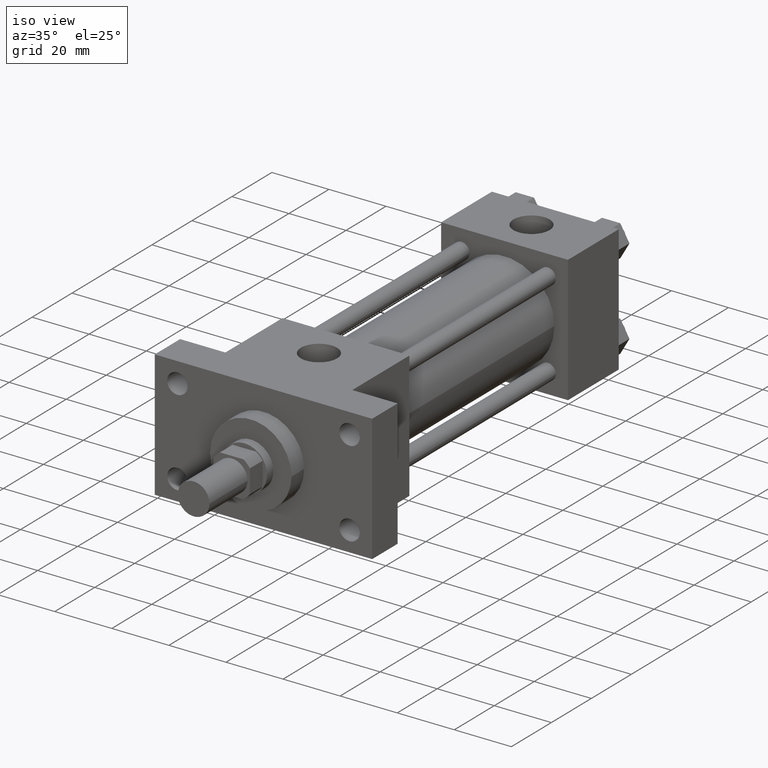
[diagram: clean part render]
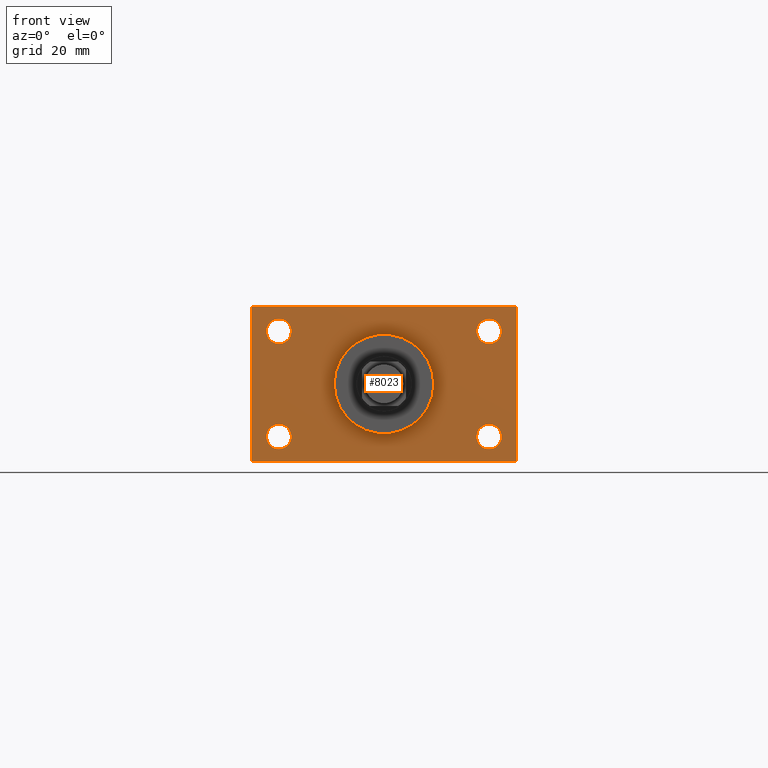
[diagram: tour spotlight — one face highlighted and labeled with its STEP entity id]
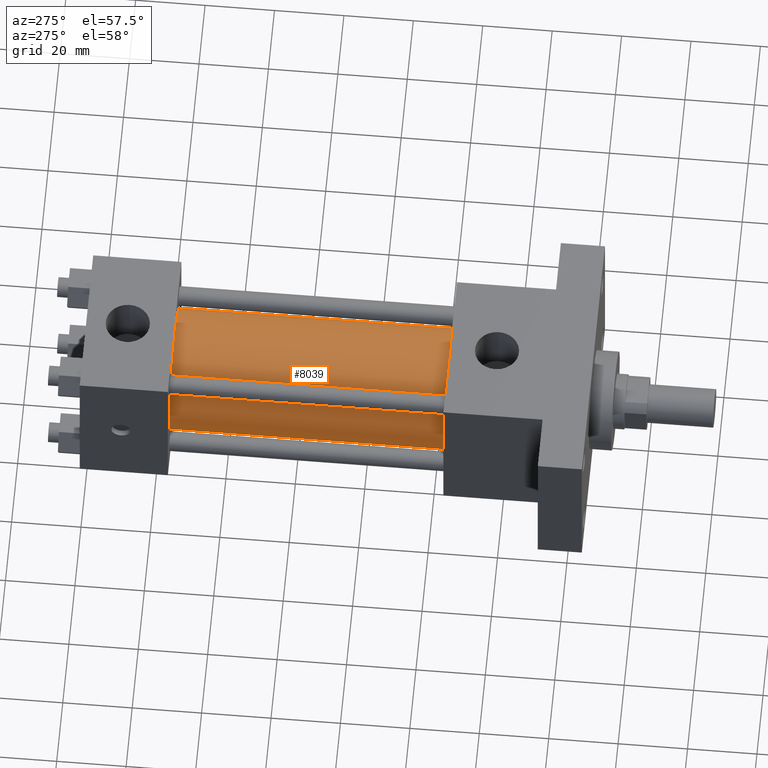
[diagram: tour spotlight — one face highlighted and labeled with its STEP entity id]
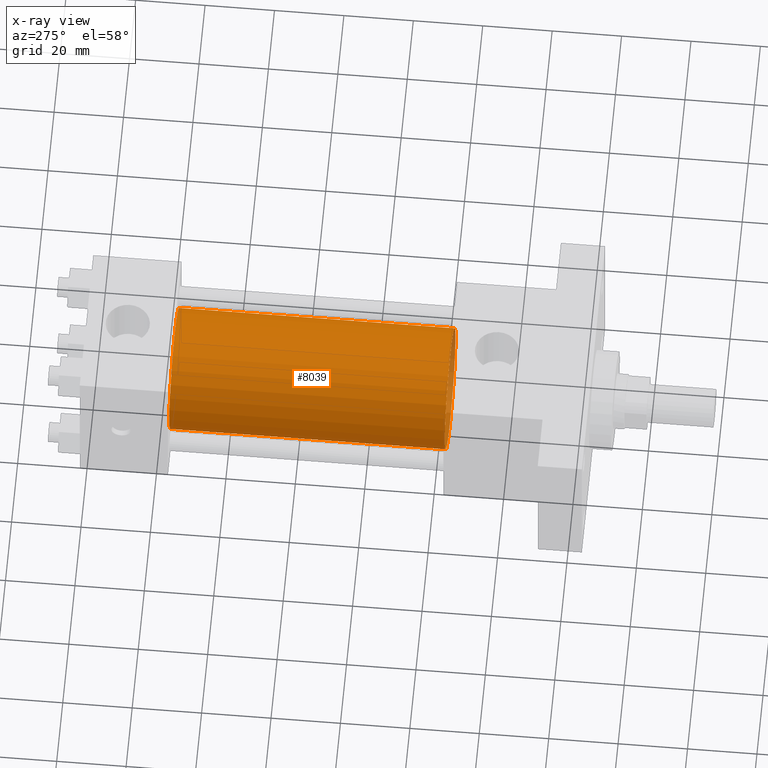
[diagram: x-ray of the same camera — body ghosted, this tour face saturated]
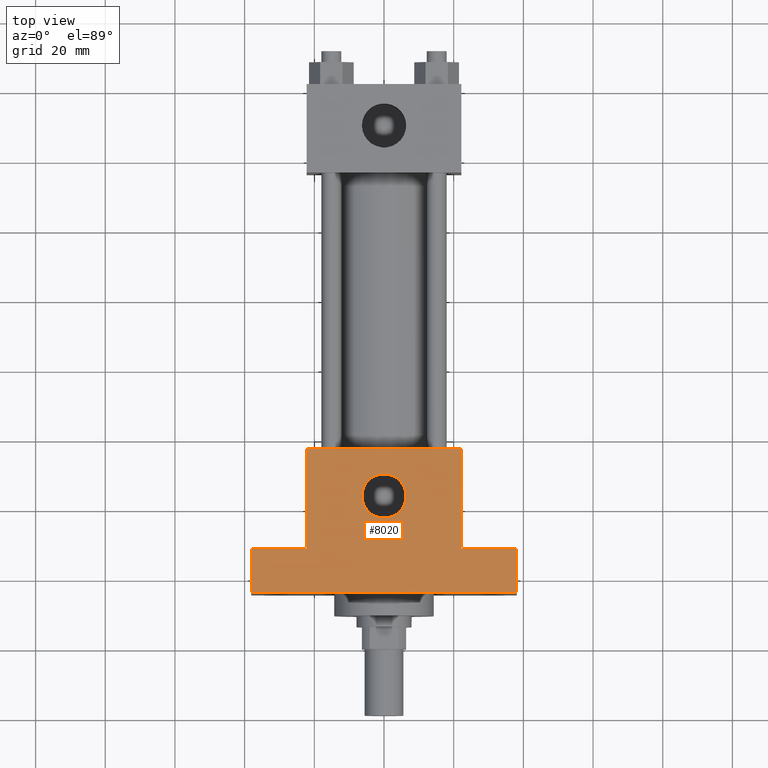
[diagram: tour spotlight — one face highlighted and labeled with its STEP entity id]
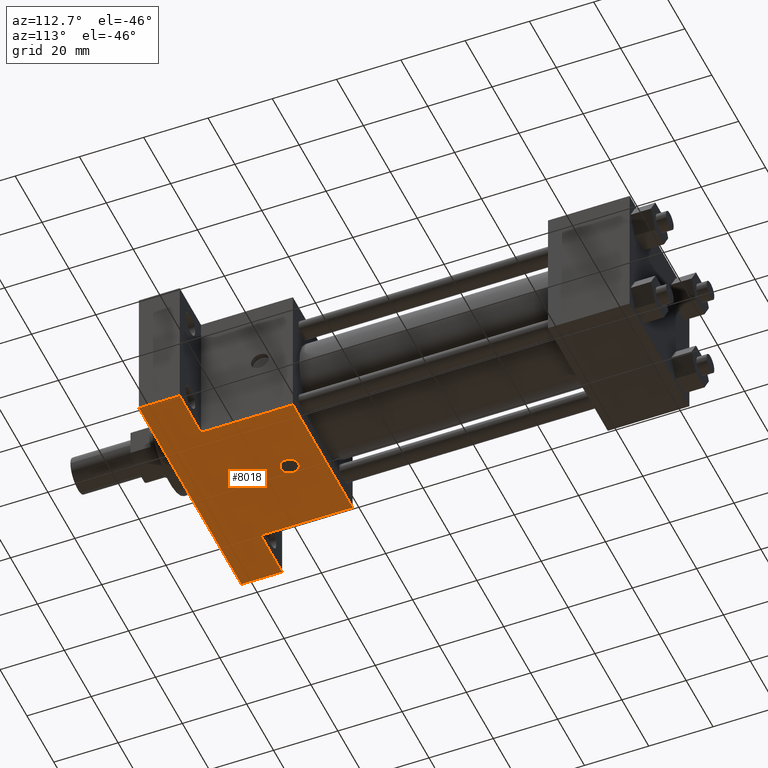
[diagram: tour spotlight — one face highlighted and labeled with its STEP entity id]
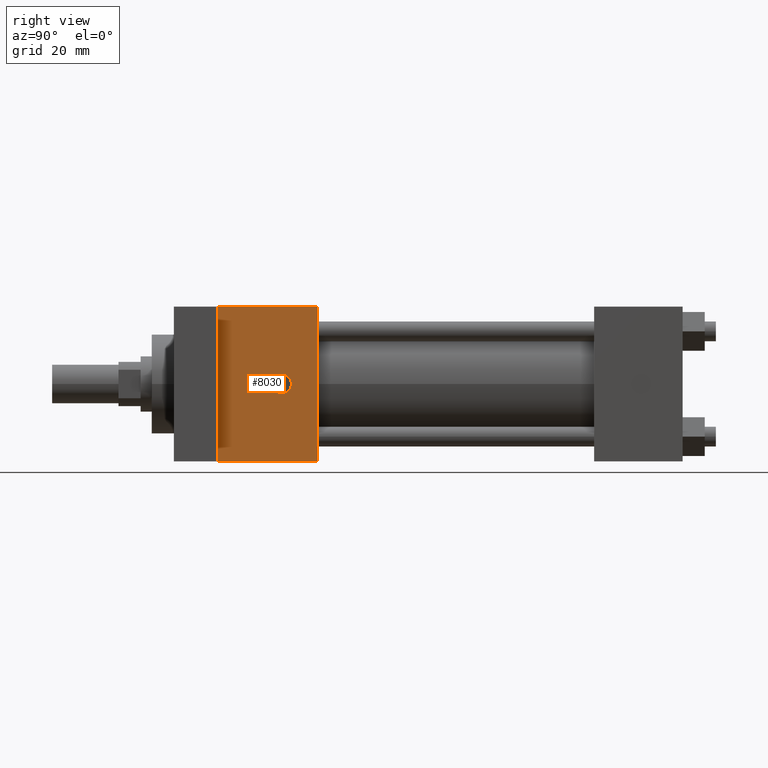
[diagram: tour spotlight — one face highlighted and labeled with its STEP entity id]
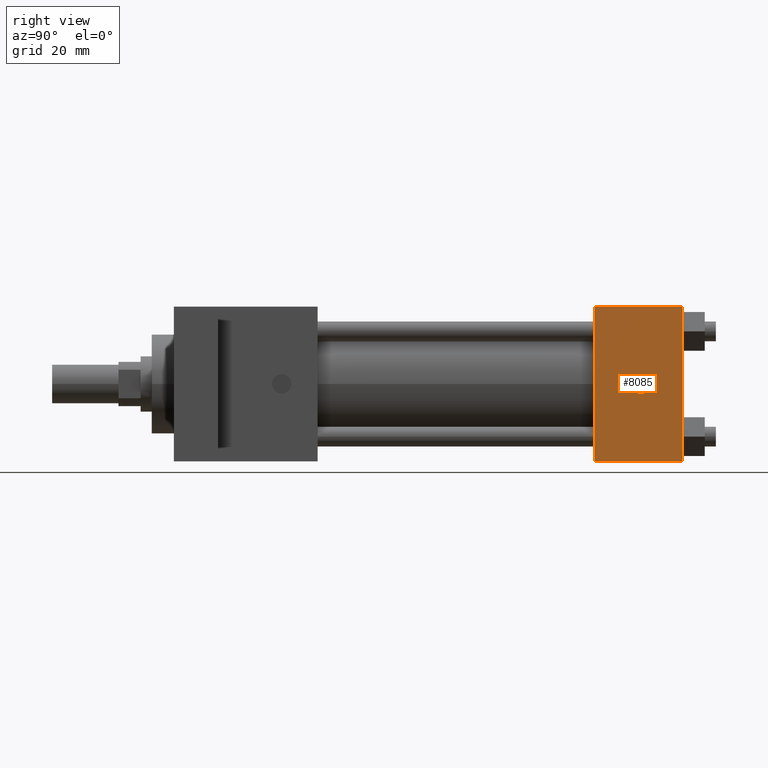
[diagram: tour spotlight — one face highlighted and labeled with its STEP entity id]
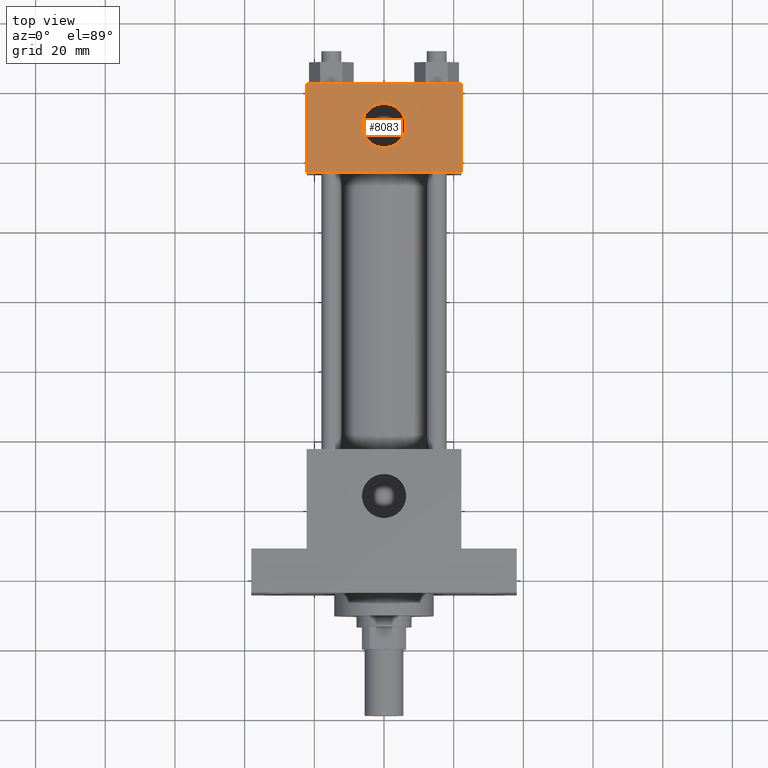
[diagram: tour spotlight — one face highlighted and labeled with its STEP entity id]
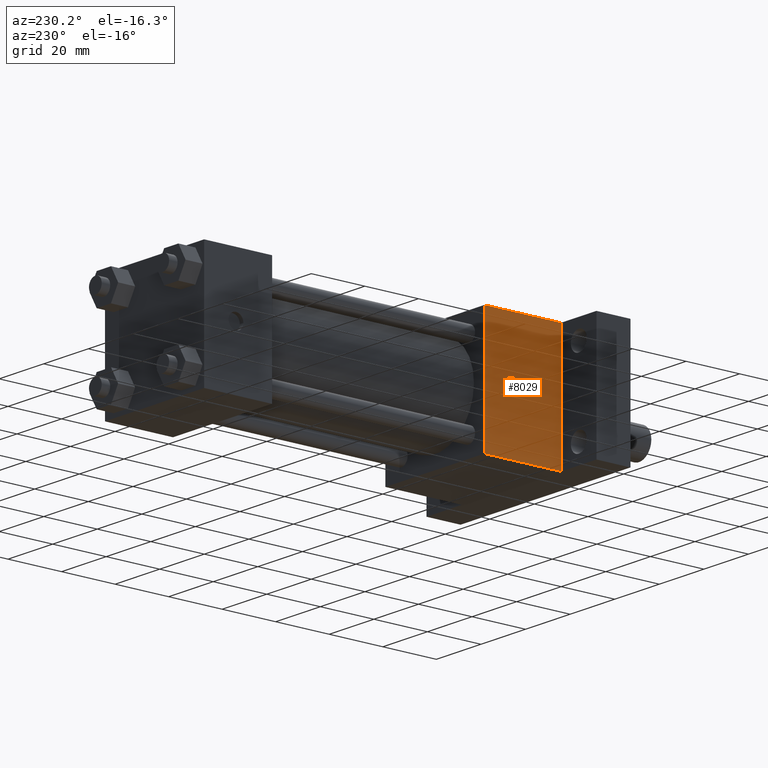
[diagram: tour spotlight — one face highlighted and labeled with its STEP entity id]
A machine part: a face-by-face anatomy tour. The part has 92 B-rep faces; the first image is the clean iso view, then the 8 largest visible faces are spotlighted one at a time (largest first), each with its STEP entity span.

Face 1 — front view, entity #8023. In plain terms, the highlighted planar face has unit normal (0, -1, 0).
Definition (entity closure, byte-faithful):
#424=EDGE_CURVE('',#430,#430,#425,.T.);
#425=CIRCLE('',#426,1.428750000E+001);
#426=AXIS2_PLACEMENT_3D('',#427,#428,#429);
#427=CARTESIAN_POINT('',(0.000000000E+000,1.587500000E+001,0.000000000E+000));
#428=DIRECTION('',(0.0E+000,1.0E+000,0.0E+000));
#429=DIRECTION('',(1.0E+000,0.0E+000,0.0E+000));
#430=VERTEX_POINT('',#431);
#431=CARTESIAN_POINT('',(1.428750000E+001,1.587500000E+001,0.000000000E+000));
#533=VERTEX_POINT('',#534);
#534=CARTESIAN_POINT('',(3.810000000E+001,1.587500000E+001,-2.222500000E+001));
#535=EDGE_CURVE('',#540,#533,#536,.T.);
#536=LINE('',#537,#538);
#537=CARTESIAN_POINT('',(-3.810000000E+001,1.587500000E+001,-2.222500000E+001));
#538=VECTOR('',#539,1.0E+000);
#539=DIRECTION('',(1.0E+000,0.0E+000,0.0E+000));
#540=VERTEX_POINT('',#541);
#541=CARTESIAN_POINT('',(-3.810000000E+001,1.587500000E+001,-2.222500000E+001));
#596=VERTEX_POINT('',#597);
#597=CARTESIAN_POINT('',(3.810000000E+001,1.587500000E+001,2.222500000E+001));
#598=EDGE_CURVE('',#533,#596,#599,.T.);
#599=LINE('',#600,#601);
#600=CARTESIAN_POINT('',(3.810000000E+001,1.587500000E+001,-2.222500000E+001));
#601=VECTOR('',#602,1.0E+000);
#602=DIRECTION('',(0.0E+000,0.0E+000,1.0E+000));
#626=VERTEX_POINT('',#628);
#628=CARTESIAN_POINT('',(-3.810000000E+001,1.587500000E+001,2.222500000E+001));
#629=EDGE_CURVE('',#596,#626,#630,.T.);
#630=LINE('',#631,#632);
#631=CARTESIAN_POINT('',(3.810000000E+001,1.587500000E+001,2.222500000E+001));
#632=VECTOR('',#633,1.0E+000);
#633=DIRECTION('',(-1.0E+000,0.0E+000,0.0E+000));
#681=EDGE_CURVE('',#626,#540,#682,.T.);
#682=LINE('',#683,#684);
#683=CARTESIAN_POINT('',(-3.810000000E+001,1.587500000E+001,2.222500000E+001));
#684=VECTOR('',#685,1.0E+000);
#685=DIRECTION('',(0.0E+000,0.0E+000,-1.0E+000));
#724=FACE_OUTER_BOUND('',#730,.T.);
#725=FACE_BOUND('',#731,.T.);
#726=FACE_BOUND('',#732,.T.);
#727=FACE_BOUND('',#733,.T.);
#728=FACE_BOUND('',#734,.T.);
#729=FACE_BOUND('',#735,.T.);
#730=EDGE_LOOP('',(#736));
#731=EDGE_LOOP('',(#737));
#732=EDGE_LOOP('',(#746));
#733=EDGE_LOOP('',(#755));
#734=EDGE_LOOP('',(#764));
#735=EDGE_LOOP('',(#773,#774,#775,#776));
#736=ORIENTED_EDGE('',*,*,#424,.T.);
#737=ORIENTED_EDGE('',*,*,#738,.T.);
#738=EDGE_CURVE('',#744,#744,#739,.T.);
#739=CIRCLE('',#740,3.568700000E+000);
#740=AXIS2_PLACEMENT_3D('',#741,#742,#743);
#741=CARTESIAN_POINT('',(-3.016250000E+001,1.587500000E+001,1.511300000E+001));
#742=DIRECTION('',(0.0E+000,1.0E+000,0.0E+000));
#743=DIRECTION('',(0.0E+000,0.0E+000,1.0E+000));
#744=VERTEX_POINT('',#745);
#745=CARTESIAN_POINT('',(-3.016250000E+001,1.587500000E+001,1.868170000E+001));
#746=ORIENTED_EDGE('',*,*,#747,.T.);
#747=EDGE_CURVE('',#753,#753,#748,.T.);
#748=CIRCLE('',#749,3.568700000E+000);
#749=AXIS2_PLACEMENT_3D('',#750,#751,#752);
#750=CARTESIAN_POINT('',(3.016250000E+001,1.587500000E+001,1.511300000E+001));
#751=DIRECTION('',(0.0E+000,1.0E+000,0.0E+000));
#752=DIRECTION('',(0.0E+000,0.0E+000,1.0E+000));
#753=VERTEX_POINT('',#754);
#754=CARTESIAN_POINT('',(3.016250000E+001,1.587500000E+001,1.868170000E+001));
#755=ORIENTED_EDGE('',*,*,#756,.T.);
#756=EDGE_CURVE('',#762,#762,#757,.T.);
#757=CIRCLE('',#758,3.568700000E+000);
#758=AXIS2_PLACEMENT_3D('',#759,#760,#761);
#759=CARTESIAN_POINT('',(3.016250000E+001,1.587500000E+001,-1.511300000E+001));
#760=DIRECTION('',(0.0E+000,1.0E+000,0.0E+000));
#761=DIRECTION('',(0.0E+000,0.0E+000,1.0E+000));
#762=VERTEX_POINT('',#763);
#763=CARTESIAN_POINT('',(3.016250000E+001,1.587500000E+001,-1.154430000E+001));
#764=ORIENTED_EDGE('',*,*,#765,.T.);
#765=EDGE_CURVE('',#771,#771,#766,.T.);
#766=CIRCLE('',#767,3.568700000E+000);
#767=AXIS2_PLACEMENT_3D('',#768,#769,#770);
#768=CARTESIAN_POINT('',(-3.016250000E+001,1.587500000E+001,-1.511300000E+001));
#769=DIRECTION('',(0.0E+000,1.0E+000,0.0E+000));
#770=DIRECTION('',(0.0E+000,0.0E+000,1.0E+000));
#771=VERTEX_POINT('',#772);
#772=CARTESIAN_POINT('',(-3.016250000E+001,1.587500000E+001,-1.154430000E+001));
#773=ORIENTED_EDGE('',*,*,#535,.T.);
#774=ORIENTED_EDGE('',*,*,#598,.T.);
#775=ORIENTED_EDGE('',*,*,#629,.T.);
#776=ORIENTED_EDGE('',*,*,#681,.T.);
#777=PLANE('',#778);
#778=AXIS2_PLACEMENT_3D('',#779,#780,#781);
#779=CARTESIAN_POINT('',(3.810000000E+001,1.587500000E+001,-2.222500000E+001));
#780=DIRECTION('',(0.0E+000,-1.0E+000,0.0E+000));
#781=DIRECTION('',(0.0E+000,0.0E+000,-1.0E+000));
#8023=ADVANCED_FACE('',(#724,#725,#726,#727,#728,#729),#777,.T.);

Face 2 — auxiliary view, entity #8039. An x-ray twin of the same camera follows (body ghosted, this face saturated) — the face is partly hidden behind the body. In plain terms, the highlighted cylindrical surface (bore or boss wall) has radius 17.4625 mm, axis along (0, -1, 0).
Definition (entity closure, byte-faithful):
#839=EDGE_CURVE('',#845,#845,#840,.T.);
#840=CIRCLE('',#841,1.746250000E+001);
#841=AXIS2_PLACEMENT_3D('',#842,#843,#844);
#842=CARTESIAN_POINT('',(0.000000000E+000,5.715000000E+001,0.000000000E+000));
#843=DIRECTION('',(0.0E+000,1.0E+000,0.0E+000));
#844=DIRECTION('',(1.0E+000,0.0E+000,0.0E+000));
#845=VERTEX_POINT('',#846);
#846=CARTESIAN_POINT('',(1.746250000E+001,5.715000000E+001,0.000000000E+000));
#1062=FACE_OUTER_BOUND('',#1064,.T.);
#1063=FACE_BOUND('',#1065,.T.);
#1064=EDGE_LOOP('',(#1066));
#1065=EDGE_LOOP('',(#1075));
#1066=ORIENTED_EDGE('',*,*,#1067,.F.);
#1067=EDGE_CURVE('',#1073,#1073,#1068,.T.);
#1068=CIRCLE('',#1069,1.746250000E+001);
#1069=AXIS2_PLACEMENT_3D('',#1070,#1071,#1072);
#1070=CARTESIAN_POINT('',(0.000000000E+000,1.365250000E+002,0.000000000E+000));
#1071=DIRECTION('',(0.0E+000,1.0E+000,0.0E+000));
#1072=DIRECTION('',(1.0E+000,0.0E+000,0.0E+000));
#1073=VERTEX_POINT('',#1074);
#1074=CARTESIAN_POINT('',(1.746250000E+001,1.365250000E+002,0.000000000E+000));
#1075=ORIENTED_EDGE('',*,*,#839,.T.);
#1076=CYLINDRICAL_SURFACE('',#1077,1.746250000E+001);
#1077=AXIS2_PLACEMENT_3D('',#1078,#1079,#1080);
#1078=CARTESIAN_POINT('',(0.000000000E+000,1.365250000E+002,0.000000000E+000));
#1079=DIRECTION('',(0.0E+000,-1.0E+000,0.0E+000));
#1080=DIRECTION('',(0.0E+000,0.0E+000,-1.0E+000));
#8039=ADVANCED_FACE('',(#1062,#1063),#1076,.T.);

Face 3 — top view, entity #8020. In plain terms, the highlighted planar face has unit normal (0, 0, 1).
Definition (entity closure, byte-faithful):
#497=VERTEX_POINT('',#498);
#498=CARTESIAN_POINT('',(2.222500000E+001,2.857500000E+001,2.222500000E+001));
#499=EDGE_CURVE('',#504,#497,#500,.T.);
#500=LINE('',#501,#502);
#501=CARTESIAN_POINT('',(3.810000000E+001,2.857500000E+001,2.222500000E+001));
#502=VECTOR('',#503,1.0E+000);
#503=DIRECTION('',(-1.0E+000,0.0E+000,0.0E+000));
#504=VERTEX_POINT('',#505);
#505=CARTESIAN_POINT('',(3.810000000E+001,2.857500000E+001,2.222500000E+001));
#591=EDGE_CURVE('',#504,#596,#592,.T.);
#592=LINE('',#593,#594);
#593=CARTESIAN_POINT('',(3.810000000E+001,2.857500000E+001,2.222500000E+001));
#594=VECTOR('',#595,1.0E+000);
#595=DIRECTION('',(0.0E+000,-1.0E+000,0.0E+000));
#596=VERTEX_POINT('',#597);
#597=CARTESIAN_POINT('',(3.810000000E+001,1.587500000E+001,2.222500000E+001));
#608=FACE_OUTER_BOUND('',#610,.T.);
#609=FACE_BOUND('',#611,.T.);
#610=EDGE_LOOP('',(#612,#613,#614,#615,#616,#617,#618,#619));
#611=EDGE_LOOP('',(#656));
#612=ORIENTED_EDGE('',*,*,#620,.T.);
#613=ORIENTED_EDGE('',*,*,#629,.F.);
#614=ORIENTED_EDGE('',*,*,#591,.F.);
#615=ORIENTED_EDGE('',*,*,#499,.T.);
#616=ORIENTED_EDGE('',*,*,#634,.F.);
#617=ORIENTED_EDGE('',*,*,#641,.T.);
#618=ORIENTED_EDGE('',*,*,#648,.T.);
#619=ORIENTED_EDGE('',*,*,#655,.T.);
#620=EDGE_CURVE('',#625,#626,#621,.T.);
#621=LINE('',#622,#623);
#622=CARTESIAN_POINT('',(-3.810000000E+001,2.857500000E+001,2.222500000E+001));
#623=VECTOR('',#624,1.0E+000);
#624=DIRECTION('',(0.0E+000,-1.0E+000,0.0E+000));
#625=VERTEX_POINT('',#627);
#626=VERTEX_POINT('',#628);
#627=CARTESIAN_POINT('',(-3.810000000E+001,2.857500000E+001,2.222500000E+001));
#628=CARTESIAN_POINT('',(-3.810000000E+001,1.587500000E+001,2.222500000E+001));
#629=EDGE_CURVE('',#596,#626,#630,.T.);
#630=LINE('',#631,#632);
#631=CARTESIAN_POINT('',(3.810000000E+001,1.587500000E+001,2.222500000E+001));
#632=VECTOR('',#633,1.0E+000);
#633=DIRECTION('',(-1.0E+000,0.0E+000,0.0E+000));
#634=EDGE_CURVE('',#639,#497,#635,.T.);
#635=LINE('',#636,#637);
#636=CARTESIAN_POINT('',(2.222500000E+001,5.715000000E+001,2.222500000E+001));
#637=VECTOR('',#638,1.0E+000);
#638=DIRECTION('',(0.0E+000,-1.0E+000,0.0E+000));
#639=VERTEX_POINT('',#640);
#640=CARTESIAN_POINT('',(2.222500000E+001,5.715000000E+001,2.222500000E+001));
#641=EDGE_CURVE('',#639,#646,#642,.T.);
#642=LINE('',#643,#644);
#643=CARTESIAN_POINT('',(2.222500000E+001,5.715000000E+001,2.222500000E+001));
#644=VECTOR('',#645,1.0E+000);
#645=DIRECTION('',(-1.0E+000,0.0E+000,0.0E+000));
#646=VERTEX_POINT('',#647);
#647=CARTESIAN_POINT('',(-2.222500000E+001,5.715000000E+001,2.222500000E+001));
#648=EDGE_CURVE('',#646,#653,#649,.T.);
#649=LINE('',#650,#651);
#650=CARTESIAN_POINT('',(-2.222500000E+001,5.715000000E+001,2.222500000E+001));
#651=VECTOR('',#652,1.0E+000);
#652=DIRECTION('',(0.0E+000,-1.0E+000,0.0E+000));
#653=VERTEX_POINT('',#654);
#654=CARTESIAN_POINT('',(-2.222500000E+001,2.857500000E+001,2.222500000E+001));
#655=EDGE_CURVE('',#653,#625,#500,.T.);
#656=ORIENTED_EDGE('',*,*,#657,.T.);
#657=EDGE_CURVE('',#663,#663,#658,.T.);
#658=CIRCLE('',#659,6.350000000E+000);
#659=AXIS2_PLACEMENT_3D('',#660,#661,#662);
#660=CARTESIAN_POINT('',(0.000000000E+000,4.365625000E+001,2.222500000E+001));
#661=DIRECTION('',(0.0E+000,0.0E+000,-1.0E+000));
#662=DIRECTION('',(1.0E+000,0.0E+000,0.0E+000));
#663=VERTEX_POINT('',#664);
#664=CARTESIAN_POINT('',(6.350000000E+000,4.365625000E+001,2.222500000E+001));
#665=PLANE('',#666);
#666=AXIS2_PLACEMENT_3D('',#667,#668,#669);
#667=CARTESIAN_POINT('',(3.810000000E+001,2.857500000E+001,2.222500000E+001));
#668=DIRECTION('',(0.0E+000,0.0E+000,1.0E+000));
#669=DIRECTION('',(1.0E+000,0.0E+000,0.0E+000));
#8020=ADVANCED_FACE('',(#608,#609),#665,.T.);

Face 4 — auxiliary view, entity #8018. In plain terms, the highlighted planar face has unit normal (0, 0, -1).
Definition (entity closure, byte-faithful):
#483=EDGE_CURVE('',#488,#489,#484,.T.);
#484=LINE('',#485,#486);
#485=CARTESIAN_POINT('',(-3.810000000E+001,2.857500000E+001,-2.222500000E+001));
#486=VECTOR('',#487,1.0E+000);
#487=DIRECTION('',(1.0E+000,0.0E+000,0.0E+000));
#488=VERTEX_POINT('',#490);
#489=VERTEX_POINT('',#491);
#490=CARTESIAN_POINT('',(2.222500000E+001,2.857500000E+001,-2.222500000E+001));
#491=CARTESIAN_POINT('',(3.810000000E+001,2.857500000E+001,-2.222500000E+001));
#516=FACE_OUTER_BOUND('',#518,.T.);
#517=FACE_BOUND('',#519,.T.);
#518=EDGE_LOOP('',(#520,#521,#522,#523,#524,#525,#526,#527));
#519=EDGE_LOOP('',(#571));
#520=ORIENTED_EDGE('',*,*,#528,.T.);
#521=ORIENTED_EDGE('',*,*,#535,.F.);
#522=ORIENTED_EDGE('',*,*,#542,.F.);
#523=ORIENTED_EDGE('',*,*,#549,.T.);
#524=ORIENTED_EDGE('',*,*,#552,.F.);
#525=ORIENTED_EDGE('',*,*,#559,.T.);
#526=ORIENTED_EDGE('',*,*,#566,.T.);
#527=ORIENTED_EDGE('',*,*,#483,.T.);
#528=EDGE_CURVE('',#489,#533,#529,.T.);
#529=LINE('',#530,#531);
#530=CARTESIAN_POINT('',(3.810000000E+001,2.857500000E+001,-2.222500000E+001));
#531=VECTOR('',#532,1.0E+000);
#532=DIRECTION('',(0.0E+000,-1.0E+000,0.0E+000));
#533=VERTEX_POINT('',#534);
#534=CARTESIAN_POINT('',(3.810000000E+001,1.587500000E+001,-2.222500000E+001));
#535=EDGE_CURVE('',#540,#533,#536,.T.);
#536=LINE('',#537,#538);
#537=CARTESIAN_POINT('',(-3.810000000E+001,1.587500000E+001,-2.222500000E+001));
#538=VECTOR('',#539,1.0E+000);
#539=DIRECTION('',(1.0E+000,0.0E+000,0.0E+000));
#540=VERTEX_POINT('',#541);
#541=CARTESIAN_POINT('',(-3.810000000E+001,1.587500000E+001,-2.222500000E+001));
#542=EDGE_CURVE('',#547,#540,#543,.T.);
#543=LINE('',#544,#545);
#544=CARTESIAN_POINT('',(-3.810000000E+001,2.857500000E+001,-2.222500000E+001));
#545=VECTOR('',#546,1.0E+000);
#546=DIRECTION('',(0.0E+000,-1.0E+000,0.0E+000));
#547=VERTEX_POINT('',#548);
#548=CARTESIAN_POINT('',(-3.810000000E+001,2.857500000E+001,-2.222500000E+001));
#549=EDGE_CURVE('',#547,#550,#484,.T.);
#550=VERTEX_POINT('',#551);
#551=CARTESIAN_POINT('',(-2.222500000E+001,2.857500000E+001,-2.222500000E+001));
#552=EDGE_CURVE('',#557,#550,#553,.T.);
#553=LINE('',#554,#555);
#554=CARTESIAN_POINT('',(-2.222500000E+001,5.715000000E+001,-2.222500000E+001));
#555=VECTOR('',#556,1.0E+000);
#556=DIRECTION('',(0.0E+000,-1.0E+000,0.0E+000));
#557=VERTEX_POINT('',#558);
#558=CARTESIAN_POINT('',(-2.222500000E+001,5.715000000E+001,-2.222500000E+001));
#559=EDGE_CURVE('',#557,#564,#560,.T.);
#560=LINE('',#561,#562);
#561=CARTESIAN_POINT('',(-2.222500000E+001,5.715000000E+001,-2.222500000E+001));
#562=VECTOR('',#563,1.0E+000);
#563=DIRECTION('',(1.0E+000,0.0E+000,0.0E+000));
#564=VERTEX_POINT('',#565);
#565=CARTESIAN_POINT('',(2.222500000E+001,5.715000000E+001,-2.222500000E+001));
#566=EDGE_CURVE('',#564,#488,#567,.T.);
#567=LINE('',#568,#569);
#568=CARTESIAN_POINT('',(2.222500000E+001,5.715000000E+001,-2.222500000E+001));
#569=VECTOR('',#570,1.0E+000);
#570=DIRECTION('',(0.0E+000,-1.0E+000,0.0E+000));
#571=ORIENTED_EDGE('',*,*,#572,.T.);
#572=EDGE_CURVE('',#578,#578,#573,.T.);
#573=CIRCLE('',#574,2.778125000E+000);
#574=AXIS2_PLACEMENT_3D('',#575,#576,#577);
#575=CARTESIAN_POINT('',(0.000000000E+000,4.683125000E+001,-2.222500000E+001));
#576=DIRECTION('',(0.0E+000,0.0E+000,1.0E+000));
#577=DIRECTION('',(1.0E+000,0.0E+000,0.0E+000));
#578=VERTEX_POINT('',#579);
#579=CARTESIAN_POINT('',(2.778125000E+000,4.683125000E+001,-2.222500000E+001));
#580=PLANE('',#581);
#581=AXIS2_PLACEMENT_3D('',#582,#583,#584);
#582=CARTESIAN_POINT('',(-3.810000000E+001,2.857500000E+001,-2.222500000E+001));
#583=DIRECTION('',(0.0E+000,0.0E+000,-1.0E+000));
#584=DIRECTION('',(-1.0E+000,0.0E+000,0.0E+000));
#8018=ADVANCED_FACE('',(#516,#517),#580,.T.);

Face 5 — right view, entity #8030. In plain terms, the highlighted planar face has unit normal (1, 0, 0).
Definition (entity closure, byte-faithful):
#488=VERTEX_POINT('',#490);
#490=CARTESIAN_POINT('',(2.222500000E+001,2.857500000E+001,-2.222500000E+001));
#492=EDGE_CURVE('',#488,#497,#493,.T.);
#493=LINE('',#494,#495);
#494=CARTESIAN_POINT('',(2.222500000E+001,2.857500000E+001,-2.222500000E+001));
#495=VECTOR('',#496,1.0E+000);
#496=DIRECTION('',(0.0E+000,0.0E+000,1.0E+000));
#497=VERTEX_POINT('',#498);
#498=CARTESIAN_POINT('',(2.222500000E+001,2.857500000E+001,2.222500000E+001));
#564=VERTEX_POINT('',#565);
#565=CARTESIAN_POINT('',(2.222500000E+001,5.715000000E+001,-2.222500000E+001));
#566=EDGE_CURVE('',#564,#488,#567,.T.);
#567=LINE('',#568,#569);
#568=CARTESIAN_POINT('',(2.222500000E+001,5.715000000E+001,-2.222500000E+001));
#569=VECTOR('',#570,1.0E+000);
#570=DIRECTION('',(0.0E+000,-1.0E+000,0.0E+000));
#634=EDGE_CURVE('',#639,#497,#635,.T.);
#635=LINE('',#636,#637);
#636=CARTESIAN_POINT('',(2.222500000E+001,5.715000000E+001,2.222500000E+001));
#637=VECTOR('',#638,1.0E+000);
#638=DIRECTION('',(0.0E+000,-1.0E+000,0.0E+000));
#639=VERTEX_POINT('',#640);
#640=CARTESIAN_POINT('',(2.222500000E+001,5.715000000E+001,2.222500000E+001));
#856=EDGE_CURVE('',#564,#639,#857,.T.);
#857=LINE('',#858,#859);
#858=CARTESIAN_POINT('',(2.222500000E+001,5.715000000E+001,-2.222500000E+001));
#859=VECTOR('',#860,1.0E+000);
#860=DIRECTION('',(0.0E+000,0.0E+000,1.0E+000));
#924=FACE_OUTER_BOUND('',#926,.T.);
#925=FACE_BOUND('',#927,.T.);
#926=EDGE_LOOP('',(#928,#929,#930,#931));
#927=EDGE_LOOP('',(#932));
#928=ORIENTED_EDGE('',*,*,#634,.T.);
#929=ORIENTED_EDGE('',*,*,#492,.F.);
#930=ORIENTED_EDGE('',*,*,#566,.F.);
#931=ORIENTED_EDGE('',*,*,#856,.T.);
#932=ORIENTED_EDGE('',*,*,#933,.T.);
#933=EDGE_CURVE('',#939,#939,#934,.T.);
#934=CIRCLE('',#935,2.778125000E+000);
#935=AXIS2_PLACEMENT_3D('',#936,#937,#938);
#936=CARTESIAN_POINT('',(2.222500000E+001,4.683125000E+001,0.000000000E+000));
#937=DIRECTION('',(-1.0E+000,0.0E+000,0.0E+000));
#938=DIRECTION('',(0.0E+000,1.0E+000,0.0E+000));
#939=VERTEX_POINT('',#940);
#940=CARTESIAN_POINT('',(2.222500000E+001,4.960937500E+001,0.000000000E+000));
#941=PLANE('',#942);
#942=AXIS2_PLACEMENT_3D('',#943,#944,#945);
#943=CARTESIAN_POINT('',(2.222500000E+001,5.715000000E+001,-2.222500000E+001));
#944=DIRECTION('',(1.0E+000,0.0E+000,0.0E+000));
#945=DIRECTION('',(0.0E+000,0.0E+000,-1.0E+000));
#8030=ADVANCED_FACE('',(#924,#925),#941,.T.);

Face 6 — right view, entity #8085. In plain terms, the highlighted planar face has unit normal (1, 0, 0).
Definition (entity closure, byte-faithful):
#2245=VERTEX_POINT('',#2247);
#2247=CARTESIAN_POINT('',(2.222500000E+001,1.619250000E+002,-2.222500000E+001));
#2260=VERTEX_POINT('',#2261);
#2261=CARTESIAN_POINT('',(2.222500000E+001,1.619250000E+002,2.222500000E+001));
#2262=EDGE_CURVE('',#2245,#2260,#2263,.T.);
#2263=LINE('',#2264,#2265);
#2264=CARTESIAN_POINT('',(2.222500000E+001,1.619250000E+002,-2.222500000E+001));
#2265=VECTOR('',#2266,1.0E+000);
#2266=DIRECTION('',(0.0E+000,0.0E+000,1.0E+000));
#2418=VERTEX_POINT('',#2420);
#2420=CARTESIAN_POINT('',(2.222500000E+001,1.365250000E+002,-2.222500000E+001));
#2421=EDGE_CURVE('',#2418,#2426,#2422,.T.);
#2422=LINE('',#2423,#2424);
#2423=CARTESIAN_POINT('',(2.222500000E+001,1.365250000E+002,-2.222500000E+001));
#2424=VECTOR('',#2425,1.0E+000);
#2425=DIRECTION('',(0.0E+000,0.0E+000,1.0E+000));
#2426=VERTEX_POINT('',#2427);
#2427=CARTESIAN_POINT('',(2.222500000E+001,1.365250000E+002,2.222500000E+001));
#2467=EDGE_CURVE('',#2245,#2418,#2468,.T.);
#2468=LINE('',#2469,#2470);
#2469=CARTESIAN_POINT('',(2.222500000E+001,1.619250000E+002,-2.222500000E+001));
#2470=VECTOR('',#2471,1.0E+000);
#2471=DIRECTION('',(0.0E+000,-1.0E+000,0.0E+000));
#2494=EDGE_CURVE('',#2260,#2426,#2495,.T.);
#2495=LINE('',#2496,#2497);
#2496=CARTESIAN_POINT('',(2.222500000E+001,1.619250000E+002,2.222500000E+001));
#2497=VECTOR('',#2498,1.0E+000);
#2498=DIRECTION('',(0.0E+000,-1.0E+000,0.0E+000));
#2540=FACE_OUTER_BOUND('',#2542,.T.);
#2541=FACE_BOUND('',#2543,.T.);
#2542=EDGE_LOOP('',(#2544,#2545,#2546,#2547));
#2543=EDGE_LOOP('',(#2548));
#2544=ORIENTED_EDGE('',*,*,#2421,.F.);
#2545=ORIENTED_EDGE('',*,*,#2467,.F.);
#2546=ORIENTED_EDGE('',*,*,#2262,.T.);
#2547=ORIENTED_EDGE('',*,*,#2494,.T.);
#2548=ORIENTED_EDGE('',*,*,#2549,.T.);
#2549=EDGE_CURVE('',#2555,#2555,#2550,.T.);
#2550=CIRCLE('',#2551,2.778125000E+000);
#2551=AXIS2_PLACEMENT_3D('',#2552,#2553,#2554);
#2552=CARTESIAN_POINT('',(2.222500000E+001,1.500187500E+002,0.000000000E+000));
#2553=DIRECTION('',(-1.0E+000,0.0E+000,0.0E+000));
#2554=DIRECTION('',(0.0E+000,1.0E+000,0.0E+000));
#2555=VERTEX_POINT('',#2556);
#2556=CARTESIAN_POINT('',(2.222500000E+001,1.527968750E+002,0.000000000E+000));
#2557=PLANE('',#2558);
#2558=AXIS2_PLACEMENT_3D('',#2559,#2560,#2561);
#2559=CARTESIAN_POINT('',(2.222500000E+001,1.619250000E+002,-2.222500000E+001));
#2560=DIRECTION('',(1.0E+000,0.0E+000,0.0E+000));
#2561=DIRECTION('',(0.0E+000,0.0E+000,-1.0E+000));
#8085=ADVANCED_FACE('',(#2540,#2541),#2557,.T.);

Face 7 — top view, entity #8083. In plain terms, the highlighted planar face has unit normal (0, 0, 1).
Definition (entity closure, byte-faithful):
#2253=VERTEX_POINT('',#2254);
#2254=CARTESIAN_POINT('',(-2.222500000E+001,1.619250000E+002,2.222500000E+001));
#2255=EDGE_CURVE('',#2260,#2253,#2256,.T.);
#2256=LINE('',#2257,#2258);
#2257=CARTESIAN_POINT('',(2.222500000E+001,1.619250000E+002,2.222500000E+001));
#2258=VECTOR('',#2259,1.0E+000);
#2259=DIRECTION('',(-1.0E+000,0.0E+000,0.0E+000));
#2260=VERTEX_POINT('',#2261);
#2261=CARTESIAN_POINT('',(2.222500000E+001,1.619250000E+002,2.222500000E+001));
#2426=VERTEX_POINT('',#2427);
#2427=CARTESIAN_POINT('',(2.222500000E+001,1.365250000E+002,2.222500000E+001));
#2428=EDGE_CURVE('',#2426,#2433,#2429,.T.);
#2429=LINE('',#2430,#2431);
#2430=CARTESIAN_POINT('',(2.222500000E+001,1.365250000E+002,2.222500000E+001));
#2431=VECTOR('',#2432,1.0E+000);
#2432=DIRECTION('',(-1.0E+000,0.0E+000,0.0E+000));
#2433=VERTEX_POINT('',#2434);
#2434=CARTESIAN_POINT('',(-2.222500000E+001,1.365250000E+002,2.222500000E+001));
#2486=FACE_OUTER_BOUND('',#2488,.T.);
#2487=FACE_BOUND('',#2489,.T.);
#2488=EDGE_LOOP('',(#2490,#2491,#2492,#2493));
#2489=EDGE_LOOP('',(#2504));
#2490=ORIENTED_EDGE('',*,*,#2428,.F.);
#2491=ORIENTED_EDGE('',*,*,#2494,.F.);
#2492=ORIENTED_EDGE('',*,*,#2255,.T.);
#2493=ORIENTED_EDGE('',*,*,#2499,.T.);
#2494=EDGE_CURVE('',#2260,#2426,#2495,.T.);
#2495=LINE('',#2496,#2497);
#2496=CARTESIAN_POINT('',(2.222500000E+001,1.619250000E+002,2.222500000E+001));
#2497=VECTOR('',#2498,1.0E+000);
#2498=DIRECTION('',(0.0E+000,-1.0E+000,0.0E+000));
#2499=EDGE_CURVE('',#2253,#2433,#2500,.T.);
#2500=LINE('',#2501,#2502);
#2501=CARTESIAN_POINT('',(-2.222500000E+001,1.619250000E+002,2.222500000E+001));
#2502=VECTOR('',#2503,1.0E+000);
#2503=DIRECTION('',(0.0E+000,-1.0E+000,0.0E+000));
#2504=ORIENTED_EDGE('',*,*,#2505,.T.);
#2505=EDGE_CURVE('',#2511,#2511,#2506,.T.);
#2506=CIRCLE('',#2507,6.350000000E+000);
#2507=AXIS2_PLACEMENT_3D('',#2508,#2509,#2510);
#2508=CARTESIAN_POINT('',(0.000000000E+000,1.500187500E+002,2.222500000E+001));
#2509=DIRECTION('',(0.0E+000,0.0E+000,-1.0E+000));
#2510=DIRECTION('',(1.0E+000,0.0E+000,0.0E+000));
#2511=VERTEX_POINT('',#2512);
#2512=CARTESIAN_POINT('',(6.350000000E+000,1.500187500E+002,2.222500000E+001));
#2513=PLANE('',#2514);
#2514=AXIS2_PLACEMENT_3D('',#2515,#2516,#2517);
#2515=CARTESIAN_POINT('',(2.222500000E+001,1.619250000E+002,2.222500000E+001));
#2516=DIRECTION('',(0.0E+000,0.0E+000,1.0E+000));
#2517=DIRECTION('',(1.0E+000,0.0E+000,0.0E+000));
#8083=ADVANCED_FACE('',(#2486,#2487),#2513,.T.);

Face 8 — auxiliary view, entity #8029. In plain terms, the highlighted planar face has unit normal (-1, 0, 0).
Definition (entity closure, byte-faithful):
#550=VERTEX_POINT('',#551);
#551=CARTESIAN_POINT('',(-2.222500000E+001,2.857500000E+001,-2.222500000E+001));
#552=EDGE_CURVE('',#557,#550,#553,.T.);
#553=LINE('',#554,#555);
#554=CARTESIAN_POINT('',(-2.222500000E+001,5.715000000E+001,-2.222500000E+001));
#555=VECTOR('',#556,1.0E+000);
#556=DIRECTION('',(0.0E+000,-1.0E+000,0.0E+000));
#557=VERTEX_POINT('',#558);
#558=CARTESIAN_POINT('',(-2.222500000E+001,5.715000000E+001,-2.222500000E+001));
#646=VERTEX_POINT('',#647);
#647=CARTESIAN_POINT('',(-2.222500000E+001,5.715000000E+001,2.222500000E+001));
#648=EDGE_CURVE('',#646,#653,#649,.T.);
#649=LINE('',#650,#651);
#650=CARTESIAN_POINT('',(-2.222500000E+001,5.715000000E+001,2.222500000E+001));
#651=VECTOR('',#652,1.0E+000);
#652=DIRECTION('',(0.0E+000,-1.0E+000,0.0E+000));
#653=VERTEX_POINT('',#654);
#654=CARTESIAN_POINT('',(-2.222500000E+001,2.857500000E+001,2.222500000E+001));
#719=EDGE_CURVE('',#653,#550,#720,.T.);
#720=LINE('',#721,#722);
#721=CARTESIAN_POINT('',(-2.222500000E+001,2.857500000E+001,2.222500000E+001));
#722=VECTOR('',#723,1.0E+000);
#723=DIRECTION('',(0.0E+000,0.0E+000,-1.0E+000));
#851=EDGE_CURVE('',#646,#557,#852,.T.);
#852=LINE('',#853,#854);
#853=CARTESIAN_POINT('',(-2.222500000E+001,5.715000000E+001,2.222500000E+001));
#854=VECTOR('',#855,1.0E+000);
#855=DIRECTION('',(0.0E+000,0.0E+000,-1.0E+000));
#902=FACE_OUTER_BOUND('',#904,.T.);
#903=FACE_BOUND('',#905,.T.);
#904=EDGE_LOOP('',(#906,#907,#908,#909));
#905=EDGE_LOOP('',(#910));
#906=ORIENTED_EDGE('',*,*,#851,.T.);
#907=ORIENTED_EDGE('',*,*,#552,.T.);
#908=ORIENTED_EDGE('',*,*,#719,.F.);
#909=ORIENTED_EDGE('',*,*,#648,.F.);
#910=ORIENTED_EDGE('',*,*,#911,.T.);
#911=EDGE_CURVE('',#917,#917,#912,.T.);
#912=CIRCLE('',#913,2.778125000E+000);
#913=AXIS2_PLACEMENT_3D('',#914,#915,#916);
#914=CARTESIAN_POINT('',(-2.222500000E+001,4.683125000E+001,0.000000000E+000));
#915=DIRECTION('',(1.0E+000,0.0E+000,0.0E+000));
#916=DIRECTION('',(0.0E+000,-1.0E+000,0.0E+000));
#917=VERTEX_POINT('',#918);
#918=CARTESIAN_POINT('',(-2.222500000E+001,4.405312500E+001,0.000000000E+000));
#919=PLANE('',#920);
#920=AXIS2_PLACEMENT_3D('',#921,#922,#923);
#921=CARTESIAN_POINT('',(-2.222500000E+001,5.715000000E+001,2.222500000E+001));
#922=DIRECTION('',(-1.0E+000,0.0E+000,0.0E+000));
#923=DIRECTION('',(0.0E+000,0.0E+000,1.0E+000));
#8029=ADVANCED_FACE('',(#902,#903),#919,.T.);